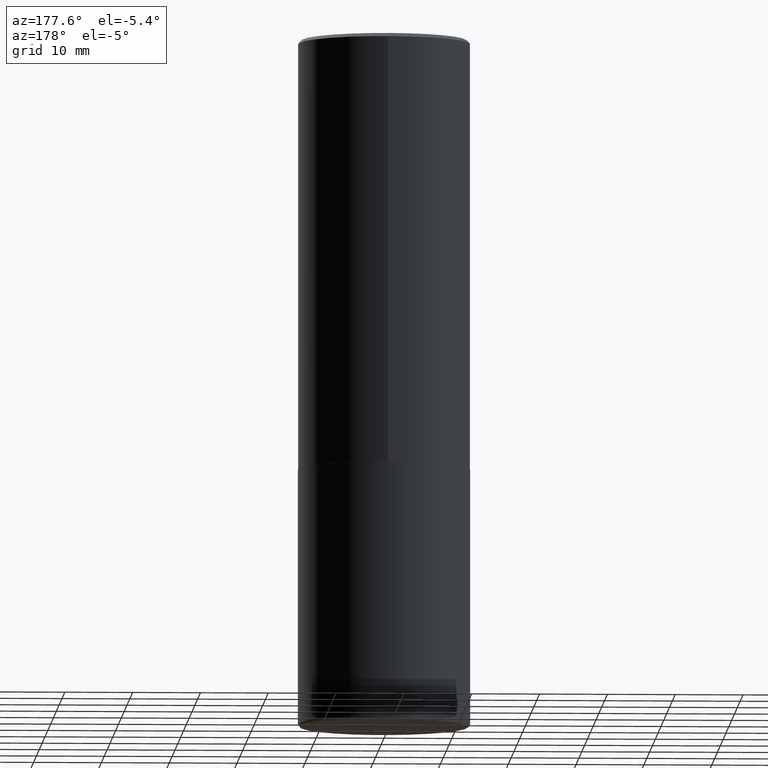
[diagram: clean part render]
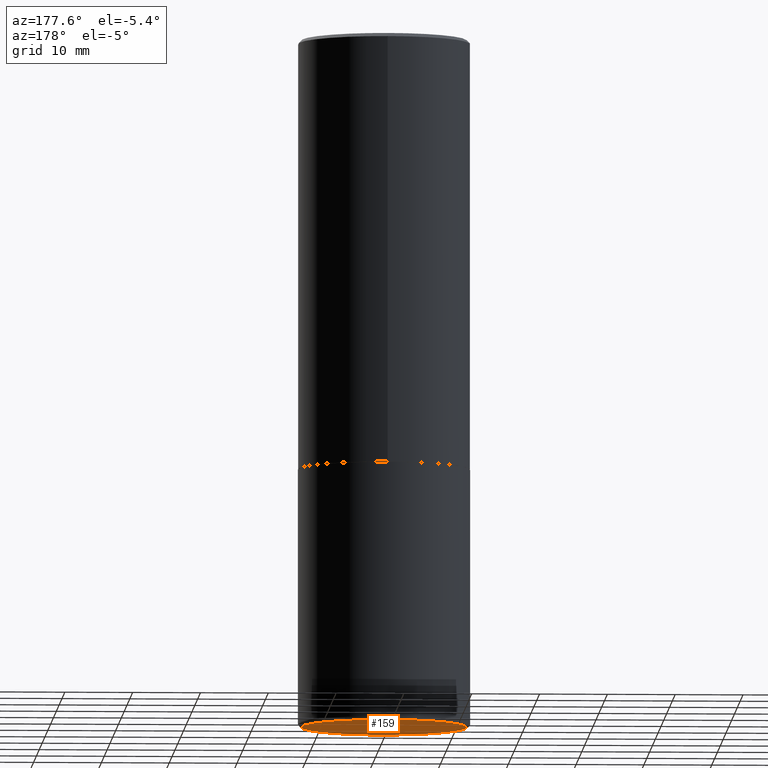
[diagram: same view with one face highlighted and labeled with its STEP entity id]
A machine part, auxiliary view. The second image highlights one B-rep face of the part: STEP entity #159.
In plain terms, the highlighted planar face has unit normal (0, -0, -1).
Its self-contained STEP definition (entity closure, byte-faithful):
#12 = DIRECTION ( 'NONE',  ( -2.445468806185136597E-29, 3.491481338843145583E-15, 1.000000000000000000 ) ) ;
#14 = CARTESIAN_POINT ( 'NONE',  ( -0.4799999999999999822, -1.044935113675966299E-14, -4.000000000000000000 ) ) ;
#22 = AXIS2_PLACEMENT_3D ( 'NONE', #333, #12, #178 ) ;
#28 = AXIS2_PLACEMENT_3D ( 'NONE', #399, #243, #209 ) ;
#38 = VERTEX_POINT ( 'NONE', #14 ) ;
#92 = PLANE ( 'NONE',  #257 ) ;
#93 = EDGE_CURVE ( 'NONE', #204, #38, #245, .T. ) ;
#121 = CARTESIAN_POINT ( 'NONE',  ( 0.4799999999999999822, -1.731774744066199067E-14, -4.000000000000000000 ) ) ;
#145 = EDGE_CURVE ( 'NONE', #38, #204, #355, .T. ) ;
#149 = FACE_OUTER_BOUND ( 'NONE', #199, .T. ) ;
#159 = ADVANCED_FACE ( 'NONE', ( #149 ), #92, .T. ) ;
#168 = ORIENTED_EDGE ( 'NONE', *, *, #93, .F. ) ;
#178 = DIRECTION ( 'NONE',  ( 1.000000000000000000, -6.982962677686268288E-15, 0.000000000000000000 ) ) ;
#199 = EDGE_LOOP ( 'NONE', ( #168, #391 ) ) ;
#204 = VERTEX_POINT ( 'NONE', #121 ) ;
#209 = DIRECTION ( 'NONE',  ( 1.000000000000000000, -6.982962677686268288E-15, 0.000000000000000000 ) ) ;
#214 = DIRECTION ( 'NONE',  ( 2.438088387897960049E-29, -3.491481338843145188E-15, -1.000000000000000000 ) ) ;
#242 = CARTESIAN_POINT ( 'NONE',  ( 9.781875224740546387E-29, -1.396592535537258233E-14, -4.000000000000000000 ) ) ;
#243 = DIRECTION ( 'NONE',  ( -2.445468806185136597E-29, 3.491481338843145583E-15, 1.000000000000000000 ) ) ;
#245 = CIRCLE ( 'NONE', #22, 0.4799999999999999822 ) ;
#257 = AXIS2_PLACEMENT_3D ( 'NONE', #242, #214, #401 ) ;
#333 = CARTESIAN_POINT ( 'NONE',  ( 9.781875224740546387E-29, -1.396592535537258233E-14, -4.000000000000000000 ) ) ;
#355 = CIRCLE ( 'NONE', #28, 0.4799999999999999822 ) ;
#391 = ORIENTED_EDGE ( 'NONE', *, *, #145, .F. ) ;
#399 = CARTESIAN_POINT ( 'NONE',  ( 9.781875224740546387E-29, -1.396592535537258233E-14, -4.000000000000000000 ) ) ;
#401 = DIRECTION ( 'NONE',  ( -1.000000000000000000, 6.982962677686265922E-15, -4.876176775795935793E-29 ) ) ;